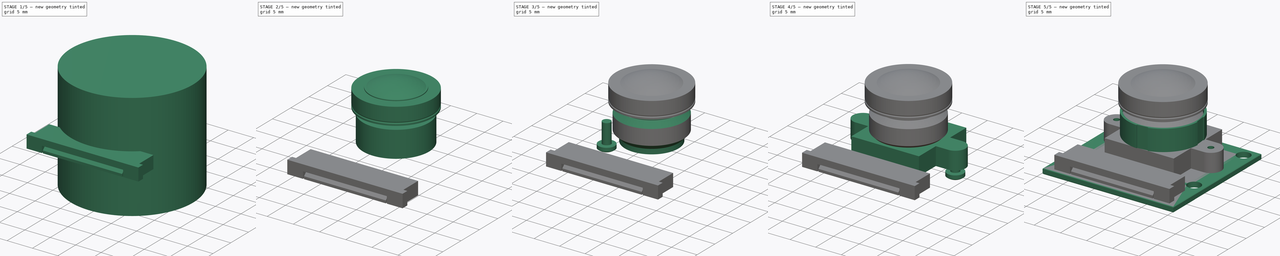
[diagram: build sequence overview — one tinted view per stage of 5, left to right]
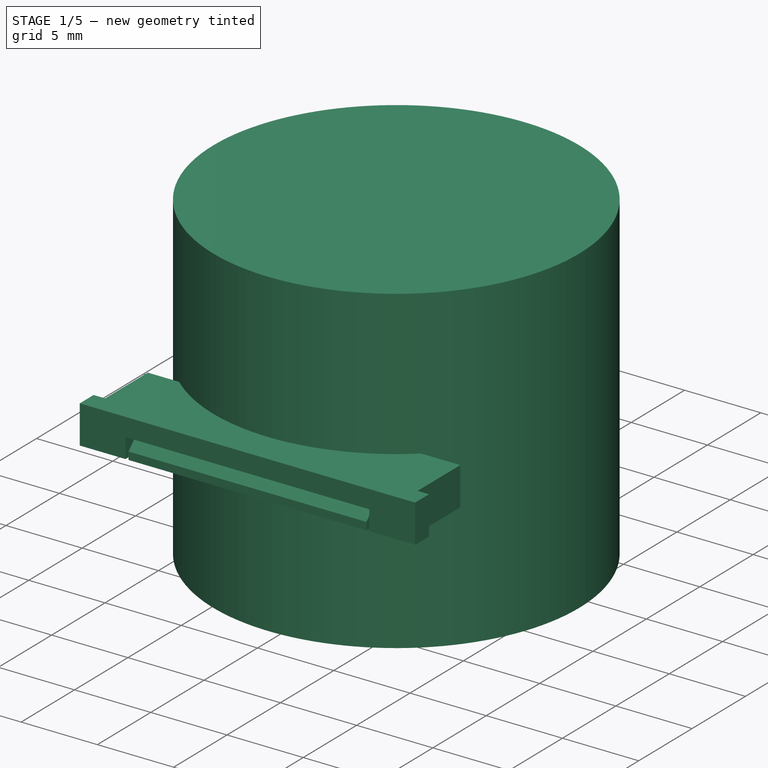
[diagram: stage 1 of 5 — iso view after this stage's code; geometry added in this stage tinted green]
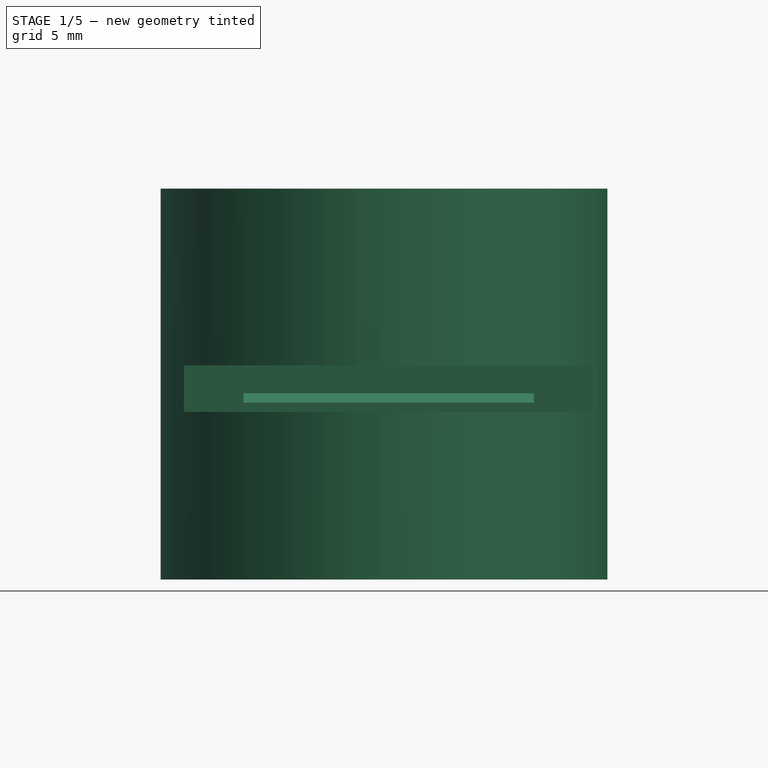
[diagram: stage 1 of 5 — front view after this stage's code; geometry added in this stage tinted green]
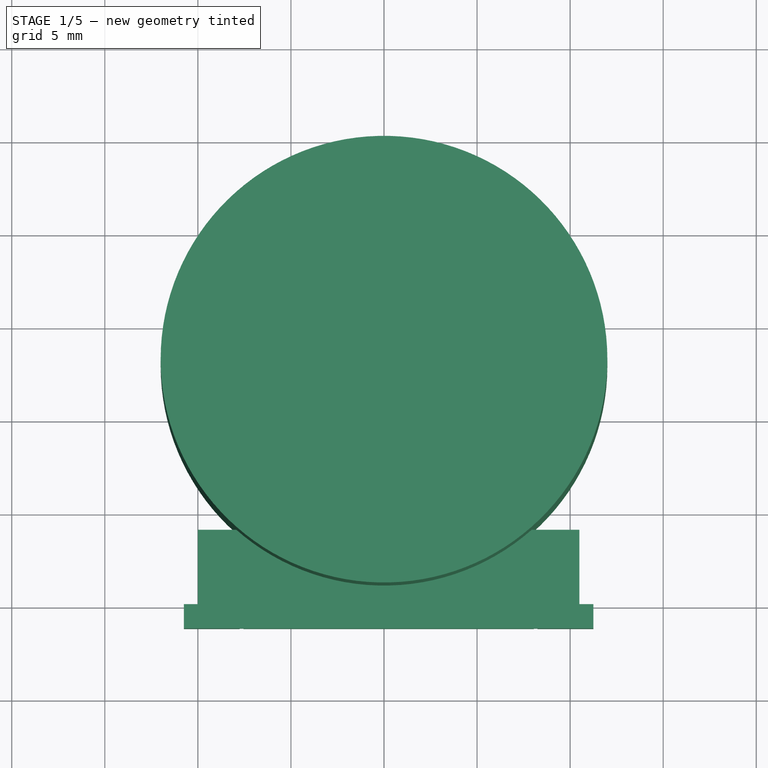
[diagram: stage 1 of 5 — top view after this stage's code; geometry added in this stage tinted green]
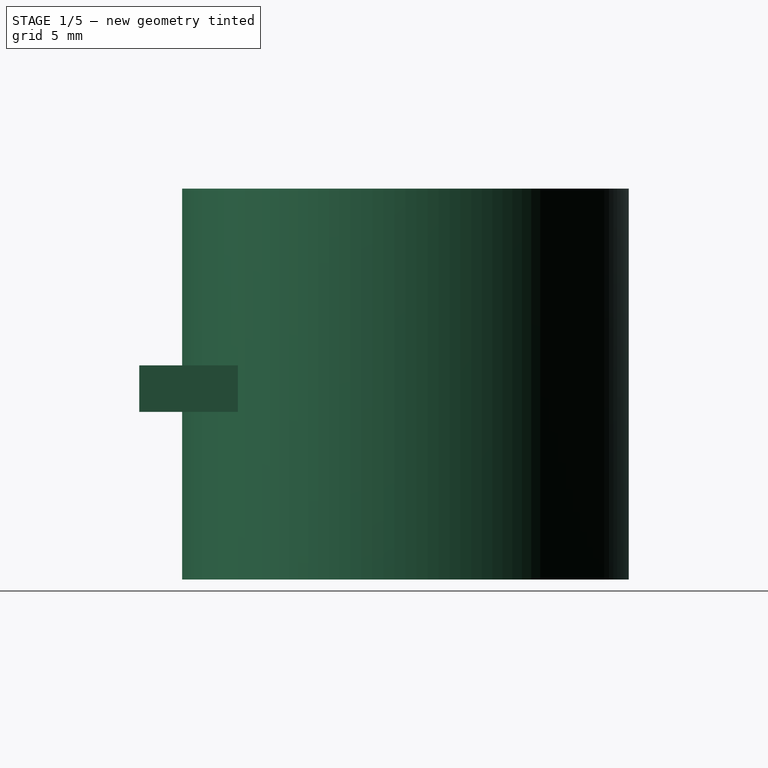
[diagram: stage 1 of 5 — right view after this stage's code; geometry added in this stage tinted green]
FCSTD DOCUMENT  (FreeCAD 0.17R12802 (Git))
Label: Wide-170-Angle-Raspi-Camera
License: All rights reserved
LicenseURL: http://en.wikipedia.org/wiki/All_rights_reserved
objects: Sketcher::SketchObject×13, PartDesign::Pad×7, PartDesign::Body×6, Part::Cylinder×6, PartDesign::ShapeBinder×5, PartDesign::Hole×5, Part::Cut×5, App::Part×4, Part::Box×4, Part::MultiFuse×3, Part::FeaturePython×2, Part::Chamfer×2, PartDesign::Chamfer×1, PartDesign::Pocket×1, Part::Torus×1, Part::Sphere×1
note: 75 computed .brp shape members not serialized (recipe doc carries the construction recipe); baked Part::Feature solids carry a one-line shape summary decoded from their .brp

FEATURE [Part::Cylinder] Cylinder005  label="Zylinder005"
  Angle = 360
  AttacherType = Attacher::AttachEngine3D
  Height = 21
  Placement = pos=(0,3,-9) rot=(0,0,1;0rad)
  Radius = 12
FEATURE [App::Part] Part002  label="Linsenkoerper"
  Group = -> [Cylinder001,Cut001,Torus,Chamfer001,Cut,Cylinder003,Cylinder002,Cylinder,Fusion001,Fusion,Cylinder004,Cut002,Sphere,Cylinder005,Cut003]
  License = CC BY 3.0
  LicenseURL = http://creativecommons.org/licenses/by/3.0/
  Origin = -> Origin008
FEATURE [Part::Box] Box  label="Würfel"
  AttacherType = Attacher::AttachEngine3D
  Height = 2.5
  Length = 20.5
  Placement = pos=(-10,-10,0) rot=(0,0,1;0rad)
  Width = 4
FEATURE [Part::Box] Box001  label="Würfel001"
  AttacherType = Attacher::AttachEngine3D
  Height = 2.5
  Length = 22
  Placement = pos=(-10.75,-11.3,0) rot=(0,0,1;0rad)
  Width = 1.3
FEATURE [Part::Box] Box002  label="Würfel002"
  AttacherType = Attacher::AttachEngine3D
  Height = 1.3
  Length = 16
  Placement = pos=(-7.75,-11.3,0) rot=(0,0,1;0rad)
  Width = 1.3
FEATURE [Part::Cut] Cut004
  Base = -> Box001
  Tool = -> Box002
FEATURE [Part::Box] Box003  label="Würfel003"
  AttacherType = Attacher::AttachEngine3D
  Height = 1
  Length = 15.6
  Placement = pos=(-7.55,-11.3,0) rot=(0,0,1;0rad)
  Width = 1.5
FEATURE [Part::MultiFuse] Fusion002
  Shapes = -> [Box,Box003]
FEATURE [Part::Chamfer] Chamfer002
  Base = -> Fusion002
  Edges = 1 edges r=0.5: [Edge24]
FEATURE [App::Part] Part003  label="Stecker"
  Group = -> [Box001,Box002,Cut004,Box003,Box,Fusion002,Chamfer002]
  License = CC BY 3.0
  LicenseURL = http://creativecommons.org/licenses/by/3.0/
  Origin = -> Origin009
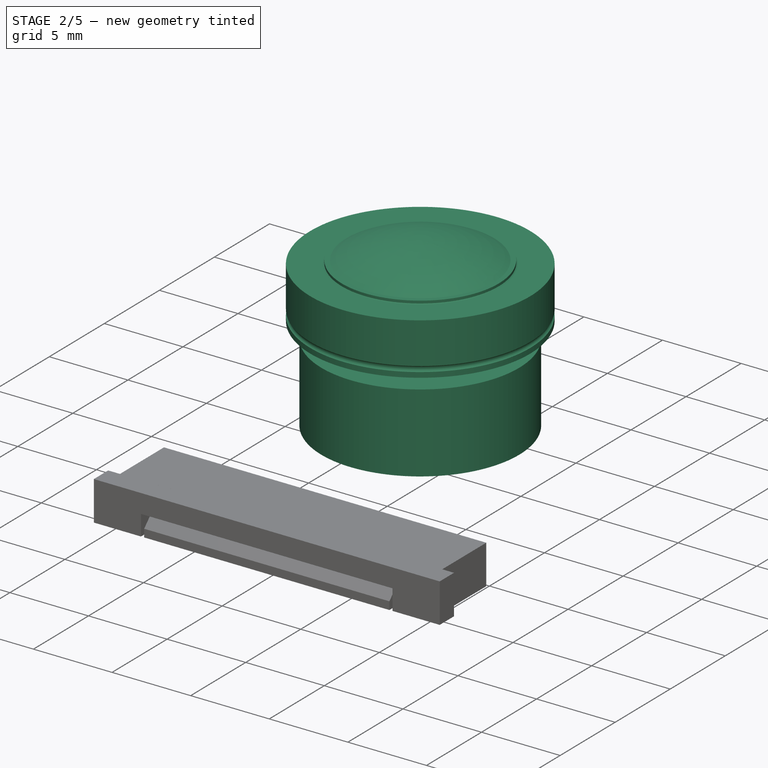
[diagram: stage 2 of 5 — iso view after this stage's code; geometry added in this stage tinted green]
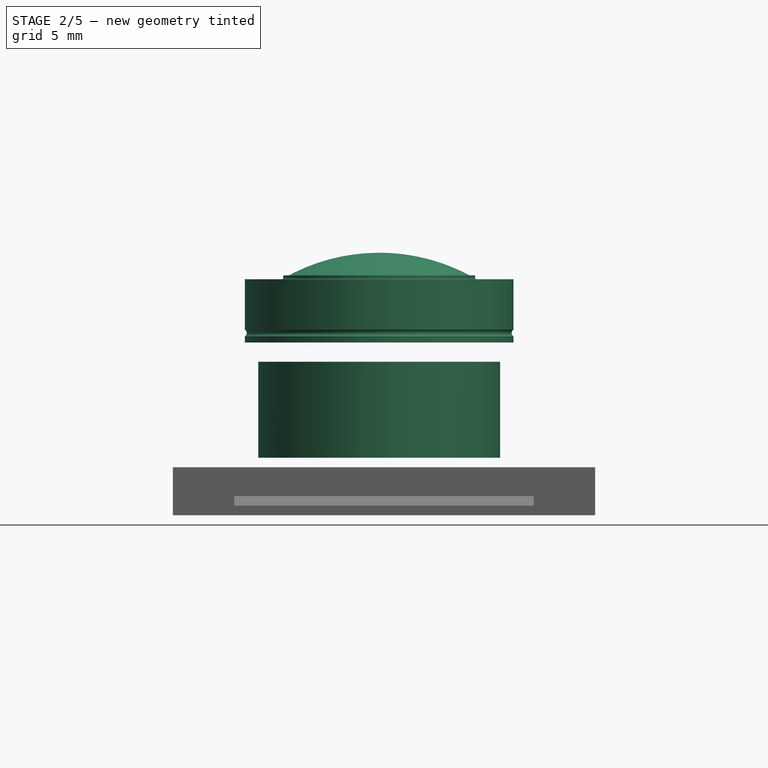
[diagram: stage 2 of 5 — front view after this stage's code; geometry added in this stage tinted green]
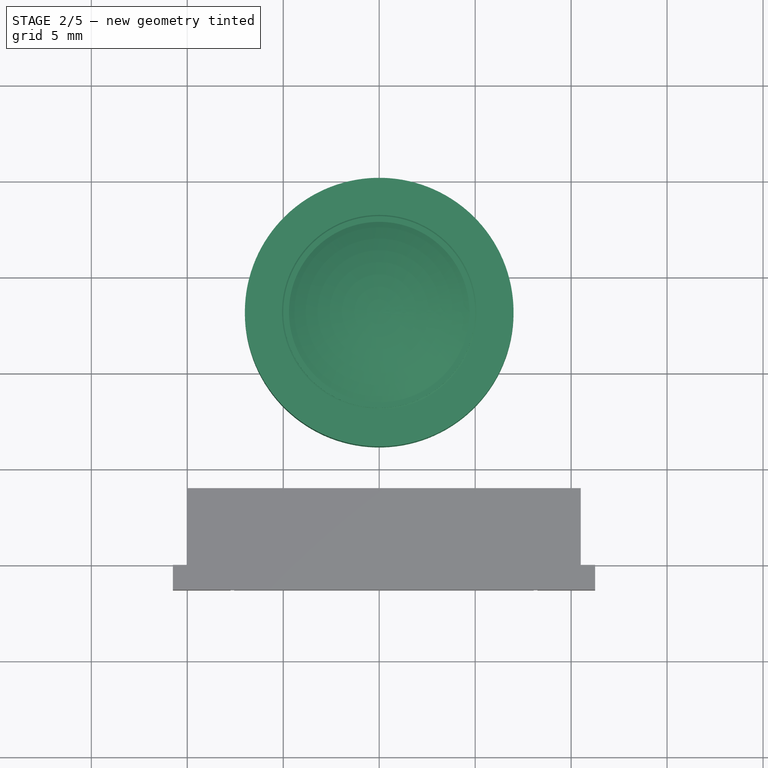
[diagram: stage 2 of 5 — top view after this stage's code; geometry added in this stage tinted green]
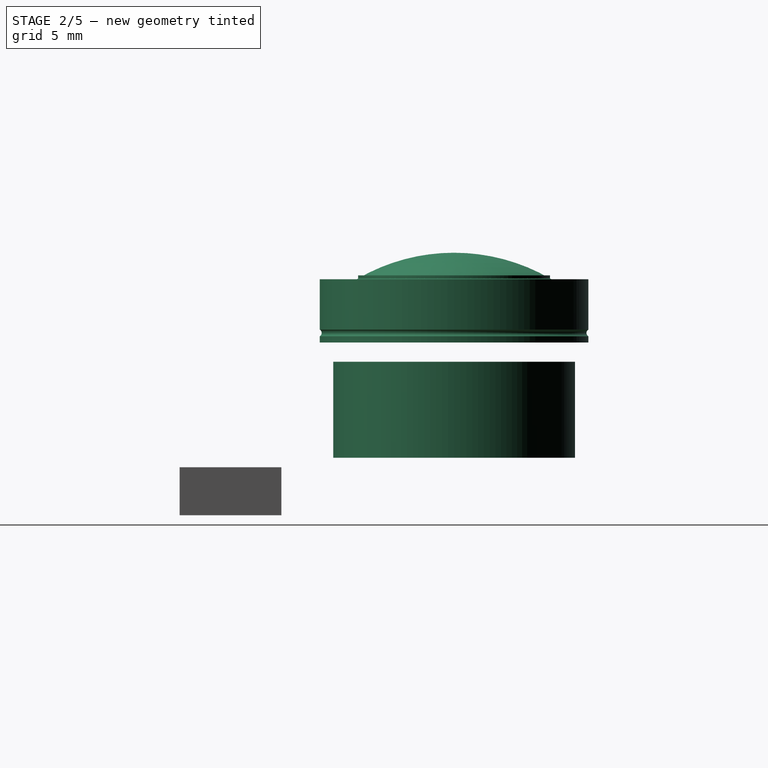
[diagram: stage 2 of 5 — right view after this stage's code; geometry added in this stage tinted green]
FEATURE [Part::Cylinder] Cylinder001  label="Zylinder001"
  Angle = 360
  AttacherType = Attacher::AttachEngine3D
  Height = 5
  Placement = pos=(0,3,3) rot=(0,0,1;0rad)
  Radius = 6.3
FEATURE [Part::Cylinder] Cylinder003  label="Zylinder003"
  Angle = 360
  AttacherType = Attacher::AttachEngine3D
  Height = 3.3
  Placement = pos=(0,3,9) rot=(0,0,1;0rad)
  Radius = 7
FEATURE [Part::Torus] Torus
  Angle1 = -180
  Angle2 = 180
  Angle3 = 360
  AttacherType = Attacher::AttachEngine3D
  Placement = pos=(0,3,9.5) rot=(0,0,1;0rad)
  Radius1 = 7.1
  Radius2 = 0.2
FEATURE [Part::Cut] Cut001
  Base = -> Cylinder003
  Tool = -> Torus
FEATURE [Part::Cylinder] Cylinder004  label="Zylinder004"
  Angle = 360
  AttacherType = Attacher::AttachEngine3D
  Height = 2
  Placement = pos=(0,3,10.5) rot=(0,0,1;0rad)
  Radius = 5
FEATURE [Part::Sphere] Sphere  label="Kugel"
  Angle1 = -90
  Angle2 = 90
  Angle3 = 360
  AttacherType = Attacher::AttachEngine3D
  Placement = pos=(0,3,3.68) rot=(0,0,1;0rad)
  Radius = 10
FEATURE [Part::Cut] Cut003
  Base = -> Sphere
  Tool = -> Cylinder005
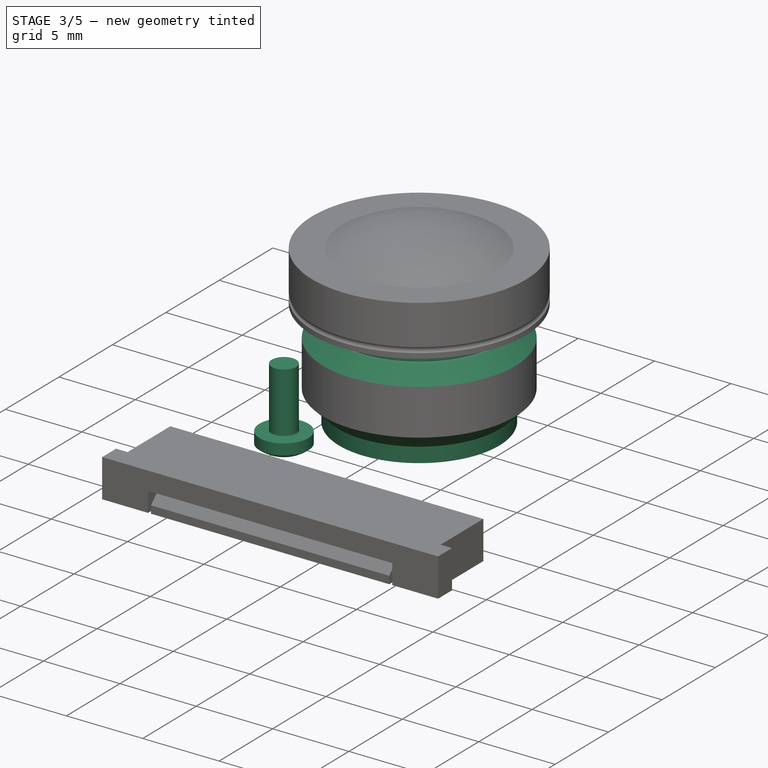
[diagram: stage 3 of 5 — iso view after this stage's code; geometry added in this stage tinted green]
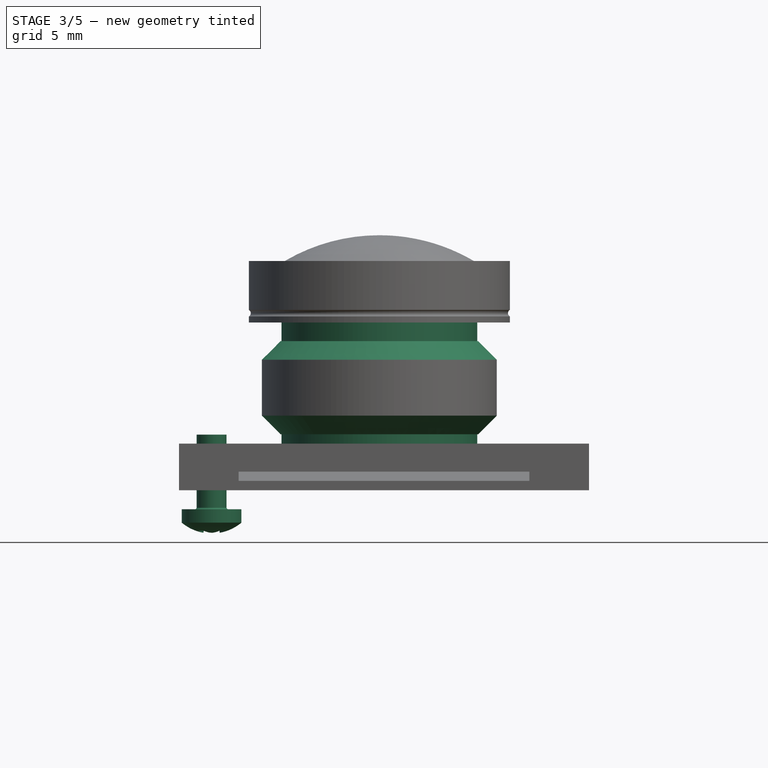
[diagram: stage 3 of 5 — front view after this stage's code; geometry added in this stage tinted green]
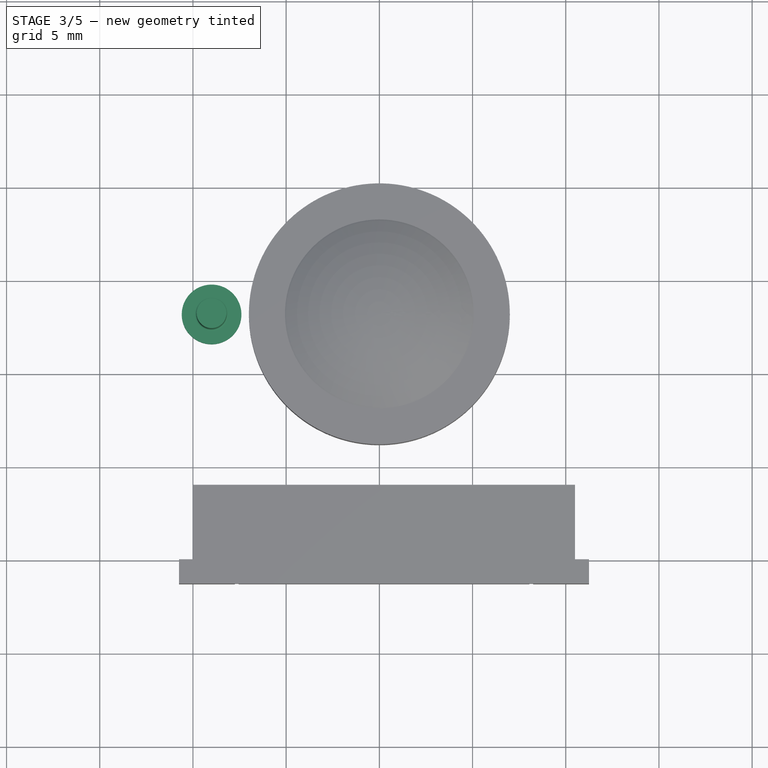
[diagram: stage 3 of 5 — top view after this stage's code; geometry added in this stage tinted green]
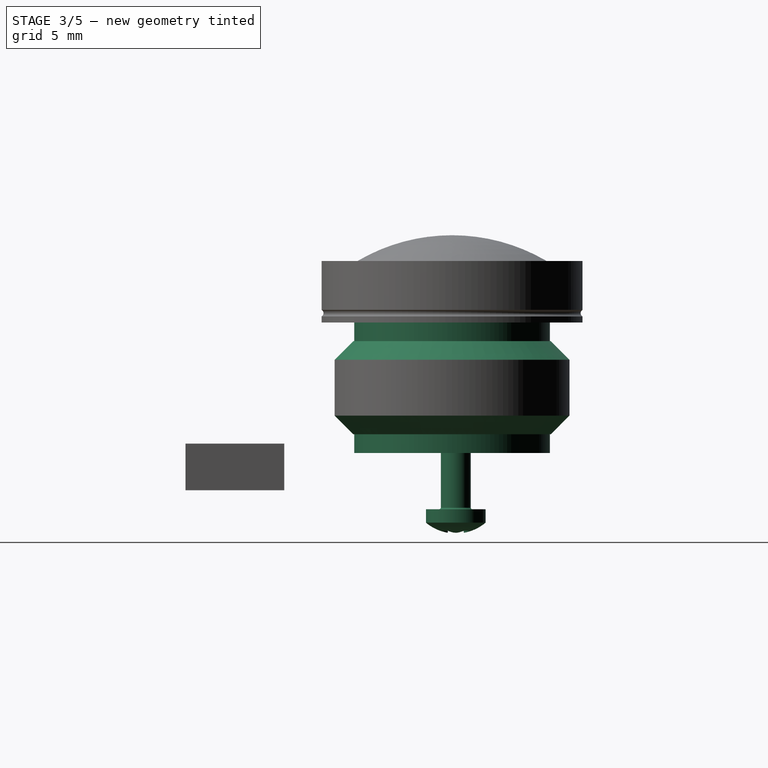
[diagram: stage 3 of 5 — right view after this stage's code; geometry added in this stage tinted green]
FEATURE [Part::FeaturePython] Screw001  label="M1.6x4-Screw"  # Fasteners workbench fastener (typed FeaturePython)
  Placement = pos=(-9,3.2,-1.02) rot=(0,1,0;3.14159rad)
  diameter = 1
  invert = false
  length = 1
  matchOuter = false
  offset = 0
  thread = false
  type = 16
FEATURE [App::Part] Part001  label="LinsenBasis"
  Group = -> [Body005,Screw,Screw001]
  License = CC BY 3.0
  LicenseURL = http://creativecommons.org/licenses/by/3.0/
  Origin = -> Origin006
FEATURE [Part::Cylinder] Cylinder  label="Zylinder"
  Angle = 360
  AttacherType = Attacher::AttachEngine3D
  Height = 7
  Placement = pos=(0,3,2) rot=(0,0,1;0rad)
  Radius = 5.25
FEATURE [Part::Chamfer] Chamfer001
  Base = -> Cylinder001
  Edges = 2 edges r=1: [Edge1,Edge3]
FEATURE [Part::Cylinder] Cylinder002  label="Zylinder002"
  Angle = 360
  AttacherType = Attacher::AttachEngine3D
  Height = 10
  Placement = pos=(0,3,1) rot=(0,0,1;0rad)
  Radius = 4.5
FEATURE [Part::MultiFuse] Fusion
  Shapes = -> [Chamfer001,Cylinder]
FEATURE [Part::Cut] Cut
  Base = -> Fusion
  Tool = -> Cylinder002
FEATURE [Part::MultiFuse] Fusion001
  Shapes = -> [Cut001,Cut]
FEATURE [Part::Cut] Cut002
  Base = -> Fusion001
  Tool = -> Cylinder004
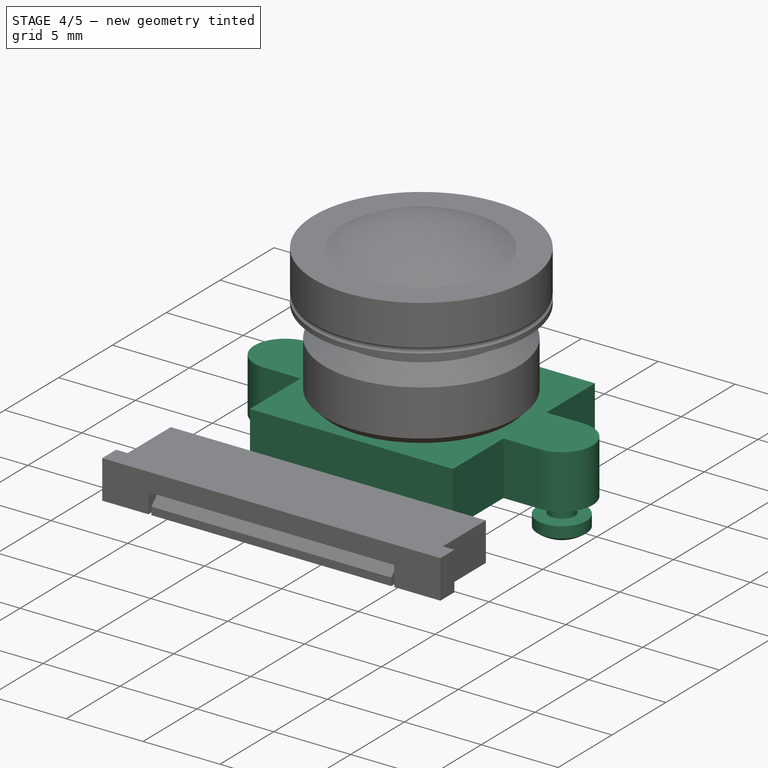
[diagram: stage 4 of 5 — iso view after this stage's code; geometry added in this stage tinted green]
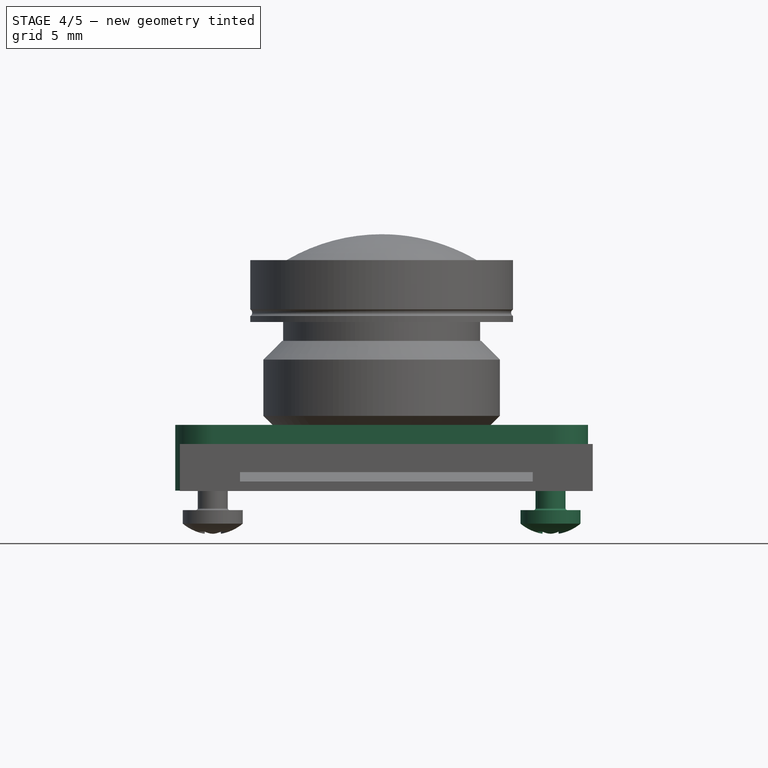
[diagram: stage 4 of 5 — front view after this stage's code; geometry added in this stage tinted green]
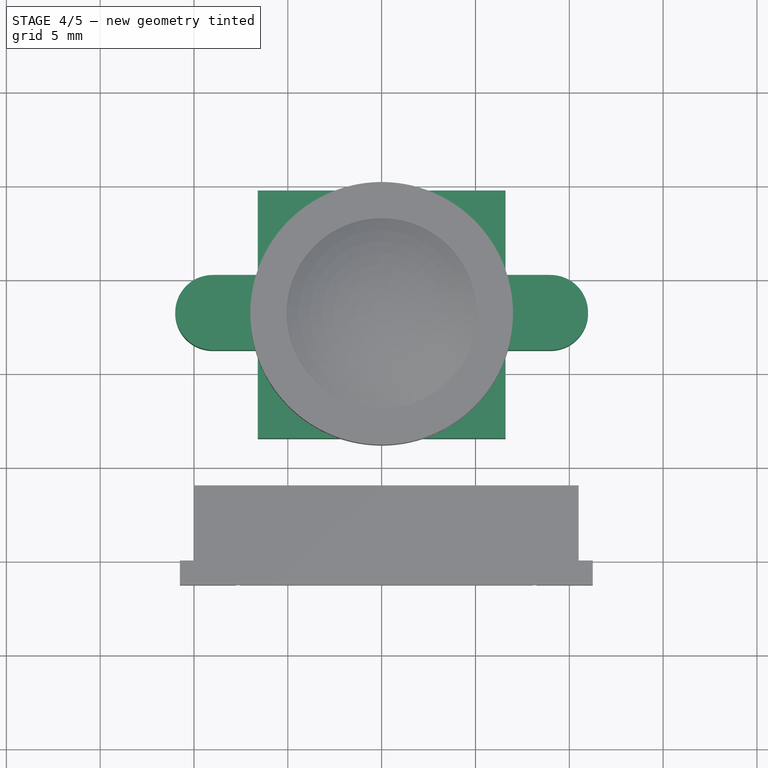
[diagram: stage 4 of 5 — top view after this stage's code; geometry added in this stage tinted green]
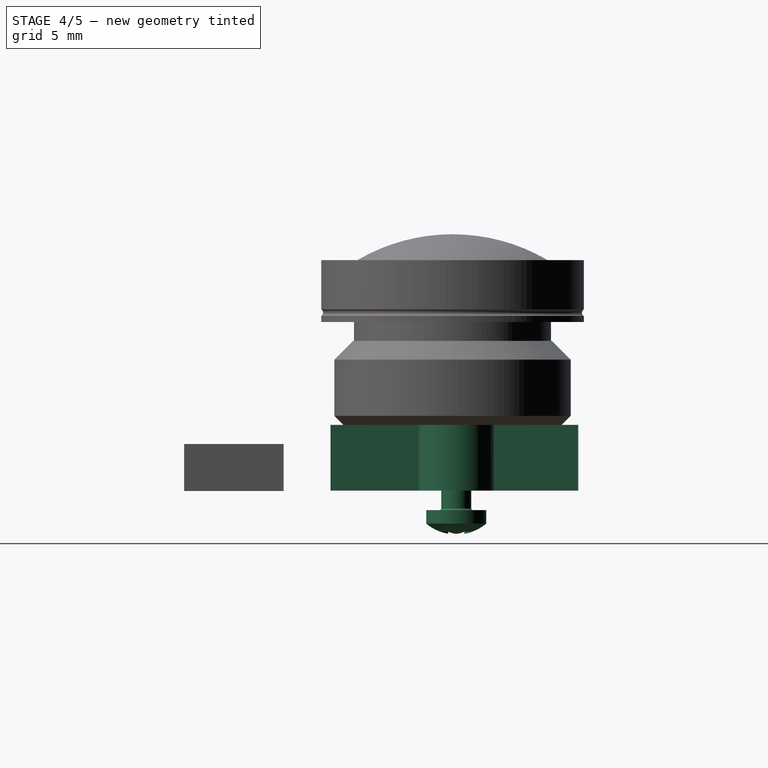
[diagram: stage 4 of 5 — right view after this stage's code; geometry added in this stage tinted green]
FEATURE [Sketcher::SketchObject] Sketch
  MapMode = 5
  Support = -> [XY_Plane001]
  sketch-geometry (4):
    g0: LineSegment StartX=-12.5 StartY=12 StartZ=0 EndX=12.5 EndY=12 EndZ=0
    g1: LineSegment StartX=12.5 StartY=12 StartZ=0 EndX=12.5 EndY=-12 EndZ=0
    g2: LineSegment StartX=12.5 StartY=-12 StartZ=0 EndX=-12.5 EndY=-12 EndZ=0
    g3: LineSegment StartX=-12.5 StartY=-12 StartZ=0 EndX=-12.5 EndY=12 EndZ=0
  constraints (12):
    c: Coincident(g0,g1)
    c: Coincident(g1,g2)
    c: Coincident(g2,g3)
    c: Coincident(g3,g0)
    c: Horizontal(g0)
    c: Horizontal(g2)
    c: Vertical(g1)
    c: Vertical(g3)
    c: DistanceY(g1,g1) = 24
    c: DistanceX(g2,g2) = 25
    c: Symmetric(g0,g0,g-2)
    c: Symmetric(g0,g2,g-1)
FEATURE [PartDesign::Pad] Pad
  Length = 1
  Length2 = 100
  Profile = -> Sketch
  Reversed = true
  Type = 0
FEATURE [PartDesign::Chamfer] Chamfer
  Base = -> Pad [Face5,Face6]
  BaseFeature = -> Pad
  Size = 0.1
FEATURE [PartDesign::ShapeBinder] ShapeBinder001
  Support = -> [Chamfer]
FEATURE [Sketcher::SketchObject] Sketch005
  ExternalGeometry = -> [ShapeBinder001]
  MapMode = 5
  Support = -> [ShapeBinder001]
  sketch-geometry (4):
    g0: LineSegment StartX=-12.4 StartY=11.9 StartZ=0 EndX=12.4 EndY=11.9 EndZ=0
    g1: LineSegment StartX=12.4 StartY=11.9 StartZ=0 EndX=12.4 EndY=-11.9 EndZ=0
    g2: LineSegment StartX=12.4 StartY=-11.9 StartZ=0 EndX=-12.4 EndY=-11.9 EndZ=0
    g3: LineSegment StartX=-12.4 StartY=-11.9 StartZ=0 EndX=-12.4 EndY=11.9 EndZ=0
  constraints (10):
    c: Coincident(g0,g1)
    c: Coincident(g1,g2)
    c: Coincident(g2,g3)
    c: Coincident(g3,g0)
    c: Horizontal(g0)
    c: Horizontal(g2)
    c: Vertical(g1)
    c: Vertical(g3)
    c: Coincident(g0,g-3)
    c: Coincident(g1,g-4)
FEATURE [PartDesign::Pad] Pad002
  Length = 0.01
  Length2 = 100
  Profile = -> Sketch005
  Type = 0
FEATURE [PartDesign::Body] Body001  label="Leitschicht_unten"
  Group = -> [ShapeBinder,Sketch004,Pad001,Sketch006,Hole001]
  Origin = -> Origin002
  Tip = -> Hole001
FEATURE [PartDesign::Hole] Hole002
  BaseFeature = -> Pad002
  Depth = 25
  DepthType = 0
  Diameter = 2.5
  DrillPoint = 1
  DrillPointAngle = 118
  HoleCutCountersinkAngle = 90
  HoleCutDepth = 0
  HoleCutDiameter = 0
  HoleCutType = 0
  ModelActualThread = false
  Profile = -> Sketch007
  Tapered = false
  TaperedAngle = 90
  ThreadAngle = 0
  ThreadClass = 0
  ThreadCutOffInner = 0
  ThreadCutOffOuter = 0
  ThreadDirection = 0
  ThreadFit = 0
  ThreadPitch = 0
  ThreadSize = 0
  ThreadType = 0
  Threaded = false
FEATURE [PartDesign::Body] Body002  label="Leitschicht_oben"
  Group = -> [ShapeBinder001,Sketch005,Pad002,Sketch007,Hole002]
  Origin = -> Origin003
  Tip = -> Hole002
FEATURE [PartDesign::ShapeBinder] ShapeBinder002
  Support = -> [Hole002]
FEATURE [PartDesign::ShapeBinder] ShapeBinder003
  Support = -> [Hole001]
FEATURE [Sketcher::SketchObject] Sketch008
  ExternalGeometry = -> [ShapeBinder002]
  MapMode = 5
  Placement = pos=(0,0,0.01) rot=(0,0,1;0rad)
  Support = -> [ShapeBinder002]
  sketch-geometry (18):
    g0: LineSegment [constr] StartX=-12.4 StartY=11.9 StartZ=0 EndX=-10.5 EndY=10 EndZ=0
    g1: LineSegment [constr] StartX=12.4 StartY=11.9 StartZ=0 EndX=10.5 EndY=10 EndZ=0
    g2: LineSegment [constr] StartX=-10.5 StartY=-3.5 StartZ=0 EndX=-12.4 EndY=-3.5 EndZ=0
    g3: LineSegment [constr] StartX=10.5 StartY=-3.5 StartZ=0 EndX=12.4 EndY=-3.5 EndZ=0
    g4: ArcOfCircle CenterX=-11.3839 CenterY=10.8839 CenterZ=0 NormalX=0 NormalY=0 NormalZ=1 AngleXU=0 Radius=2.86979 StartAngle=4.35047 EndAngle=6.64511
    g5: ArcOfCircle CenterX=11.3839 CenterY=10.8839 CenterZ=0 NormalX=0 NormalY=0 NormalZ=1 AngleXU=0 Radius=2.86979 StartAngle=2.77967 EndAngle=5.07431
    g6: ArcOfCircle CenterX=-11.4 CenterY=-3.5 CenterZ=0 NormalX=0 NormalY=0 NormalZ=1 AngleXU=0 Radius=2.5 StartAngle=4.71239 EndAngle=7.85398
    g7: LineSegment StartX=-12.4 StartY=-6 StartZ=0 EndX=-11.4 EndY=-6 EndZ=0
    g8: LineSegment StartX=-12.4 StartY=-1 StartZ=0 EndX=-11.4 EndY=-1 EndZ=0
    g9: ArcOfCircle CenterX=11.4 CenterY=-3.5 CenterZ=0 NormalX=0 NormalY=0 NormalZ=1 AngleXU=0 Radius=2.5 StartAngle=1.5708 EndAngle=4.71239
    g10: LineSegment StartX=12.4 StartY=-1 StartZ=0 EndX=11.4 EndY=-1 EndZ=0
    g11: LineSegment StartX=12.4 StartY=-6 StartZ=0 EndX=11.4 EndY=-6 EndZ=0
    g12: LineSegment StartX=-8.7 StartY=11.9 StartZ=0 EndX=8.7 EndY=11.9 EndZ=0
    g13: LineSegment StartX=-12.4 StartY=8.2 StartZ=0 EndX=-12.4 EndY=-1 EndZ=0
    g14: LineSegment StartX=12.4 StartY=8.2 StartZ=0 EndX=12.4 EndY=-1 EndZ=0
    g15: LineSegment StartX=-12.4 StartY=-6 StartZ=0 EndX=-12.4 EndY=-11.9 EndZ=0
    g16: LineSegment StartX=-12.4 StartY=-11.9 StartZ=0 EndX=12.4 EndY=-11.9 EndZ=0
    g17: LineSegment StartX=12.4 StartY=-11.9 StartZ=0 EndX=12.4 EndY=-6 EndZ=0
  constraints (47):
    c: PointOnObject(g4,g-3)
    c: DistanceX(g-3,g4) = 3.7
    c: PointOnObject(g5,g-3)
    c: PointOnObject(g4,g-4)
    c: PointOnObject(g5,g-5)
    c: Coincident(g0,g-6)
    c: Coincident(g1,g-7)
    c: Coincident(g2,g-8)
    c: PointOnObject(g2,g-4)
    c: Horizontal(g2)
    c: PointOnObject(g3,g-5)
    c: Horizontal(g3)
    c: PointOnObject(g4,g-6)
    c: PointOnObject(g5,g-7)
    c: PointOnObject(g5,g1)
    c: PointOnObject(g4,g0)
    c: Coincident(g3,g-9)
    c: DistanceX(g5,g-3) = 3.7
    c: Tangent(g7,g6) = -1.5708
    c: Tangent(g8,g6) = 1.5708
    c: Tangent(g10,g9) = -1.5708
    c: Tangent(g11,g9) = 1.5708
    c: Horizontal(g10)
    c: PointOnObject(g8,g-4)
    c: PointOnObject(g7,g-4)
    c: PointOnObject(g10,g-5)
    c: PointOnObject(g11,g-5)
    c: DistanceY(g11,g10) = 5
    c: Horizontal(g8)
    c: Horizontal(g11)
    c: DistanceY(g7,g8) = 5
    c: PointOnObject(g6,g2)
    c: DistanceX(g6,g2) = 0.9
    c: PointOnObject(g9,g3)
    c: DistanceX(g3,g9) = 0.9
    c: Coincident(g12,g4)
    c: Coincident(g12,g5)
    c: Coincident(g13,g4)
    c: Coincident(g13,g8)
    c: Coincident(g14,g5)
    c: Coincident(g14,g10)
    c: Coincident(g15,g7)
    c: Coincident(g15,g-4)
    c: Coincident(g16,g15)
    c: Coincident(g16,g-5)
    c: Coincident(g17,g16)
    c: Coincident(g17,g11)
FEATURE [PartDesign::Pad] Pad003
  Length = 0.01
  Length2 = 100
  Profile = -> Sketch008
  Type = 0
FEATURE [PartDesign::Body] Body004  label="Beschichtung_u"
  Group = -> [ShapeBinder003,Sketch009,Pad004]
  Origin = -> Origin005
  Tip = -> Pad004
FEATURE [App::Part] Part  label="Platine"
  Group = -> [Body,Body001,Body002,Body003,Body004]
  License = CC BY 3.0
  LicenseURL = http://creativecommons.org/licenses/by/3.0/
  Origin = -> Origin
FEATURE [PartDesign::ShapeBinder] ShapeBinder004
  Support = -> [Pad003]
FEATURE [Sketcher::SketchObject] Sketch010
  ExternalGeometry = -> [ShapeBinder004]
  MapMode = 5
  Placement = pos=(0,0,0.02) rot=(0,0,1;0rad)
  Support = -> [ShapeBinder004]
  sketch-geometry (15):
    g0: LineSegment StartX=-6.6 StartY=9.7 StartZ=0 EndX=6.6 EndY=9.7 EndZ=0
    g1: LineSegment StartX=6.6 StartY=9.7 StartZ=0 EndX=6.6 EndY=5.2 EndZ=0
    g2: LineSegment StartX=6.6 StartY=5.2 StartZ=0 EndX=9 EndY=5.2 EndZ=0
    g3: LineSegment StartX=9 StartY=1.2 StartZ=0 EndX=6.6 EndY=1.2 EndZ=0
    g4: LineSegment StartX=6.6 StartY=1.2 StartZ=0 EndX=6.6 EndY=-3.5 EndZ=0
    g5: LineSegment StartX=6.6 StartY=-3.5 StartZ=0 EndX=-6.6 EndY=-3.5 EndZ=0
    g6: LineSegment StartX=-6.6 StartY=-3.5 StartZ=0 EndX=-6.6 EndY=1.2 EndZ=0
    g7: LineSegment StartX=-6.6 StartY=1.2 StartZ=0 EndX=-9 EndY=1.2 EndZ=0
    g8: LineSegment StartX=-9 StartY=5.2 StartZ=0 EndX=-6.6 EndY=5.2 EndZ=0
    g9: LineSegment StartX=-6.6 StartY=5.2 StartZ=0 EndX=-6.6 EndY=9.7 EndZ=0
    g10: LineSegment [constr] StartX=-9 StartY=5.2 StartZ=0 EndX=-9 EndY=1.2 EndZ=0
    g11: LineSegment [constr] StartX=9 StartY=5.2 StartZ=0 EndX=9 EndY=1.2 EndZ=0
    g12: ArcOfCircle CenterX=9 CenterY=3.2 CenterZ=0 NormalX=0 NormalY=0 NormalZ=1 AngleXU=0 Radius=2 StartAngle=4.71239 EndAngle=7.85398
    g13: ArcOfCircle CenterX=-9 CenterY=3.2 CenterZ=0 NormalX=0 NormalY=0 NormalZ=1 AngleXU=0 Radius=2 StartAngle=1.5708 EndAngle=4.71239
    g14: LineSegment [constr] StartX=-9 StartY=3.2 StartZ=0 EndX=9 EndY=3.2 EndZ=0
  constraints (44):
    c: Horizontal(g0)
    c: Vertical(g1)
    c: Coincident(g2,g1)
    c: Horizontal(g2)
    c: Horizontal(g3)
    c: Vertical(g4)
    c: Horizontal(g5)
    c: Vertical(g6)
    c: Horizontal(g7)
    c: Horizontal(g8)
    c: Coincident(g9,g0)
    c: Vertical(g9)
    c: Coincident(g10,g8)
    c: Coincident(g10,g7)
    c: Vertical(g10)
    c: Coincident(g11,g2)
    c: Coincident(g11,g3)
    c: Vertical(g11)
    c: PointOnObject(g12,g11)
    c: Coincident(g12,g2)
    c: Coincident(g12,g3)
    c: PointOnObject(g13,g10)
    c: Coincident(g13,g8)
    c: Coincident(g13,g7)
    c: DistanceX(g0,g0) = 13.2
    c: Symmetric(g0,g1,g-2)
    c: DistanceY(g5,g0) = 13.2
    c: DistanceY(g0,g-3) = 2.2
    c: Coincident(g14,g12)
    c: Horizontal(g14)
    c: Symmetric(g9,g7,g14)
    c: Coincident(g6,g7)
    c: Coincident(g5,g6)
    c: Coincident(g9,g8)
    c: Coincident(g1,g0)
    c: Coincident(g3,g4)
    c: Coincident(g4,g5)
    c: Equal(g13,g12)
    c: DistanceY(g6,g8) = 4
    c: Coincident(g14,g13)
    c: DistanceX(g13,g12) = 18
    c: Symmetric(g13,g12,g-2)
    c: DistanceX(g5,g5) = 13.2
    c: DistanceY(g9,g9) = 4.5
FEATURE [PartDesign::Pad] Pad005
  Length = 3.5
  Length2 = 100
  Profile = -> Sketch010
  Type = 0
FEATURE [PartDesign::Body] Body005  label="Body"
  Group = -> [ShapeBinder004,Sketch010,Pad005,Sketch011,Pad006,Sketch012,Pocket,Sketch013,Hole003,Sketch014,Hole004]
  Origin = -> Origin007
  Tip = -> Hole004
FEATURE [Part::FeaturePython] Screw  label="M1.6x4-Screw001"  # Fasteners workbench fastener (typed FeaturePython)
  Placement = pos=(9,3.2,-1.02) rot=(0,1,0;3.14159rad)
  diameter = 1
  invert = false
  length = 1
  matchOuter = false
  offset = 0
  thread = false
  type = 16
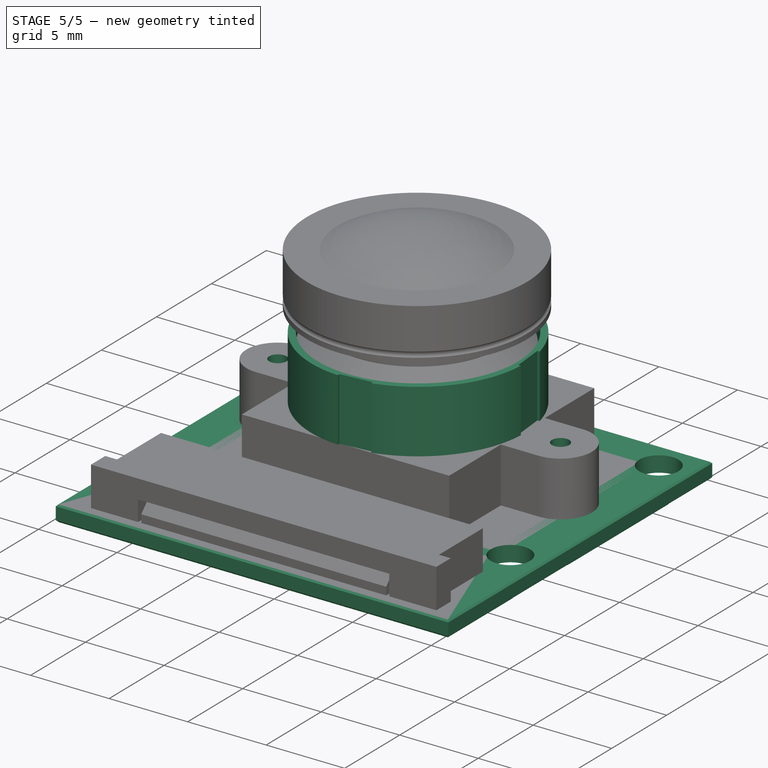
[diagram: stage 5 of 5 — iso view after this stage's code; geometry added in this stage tinted green]
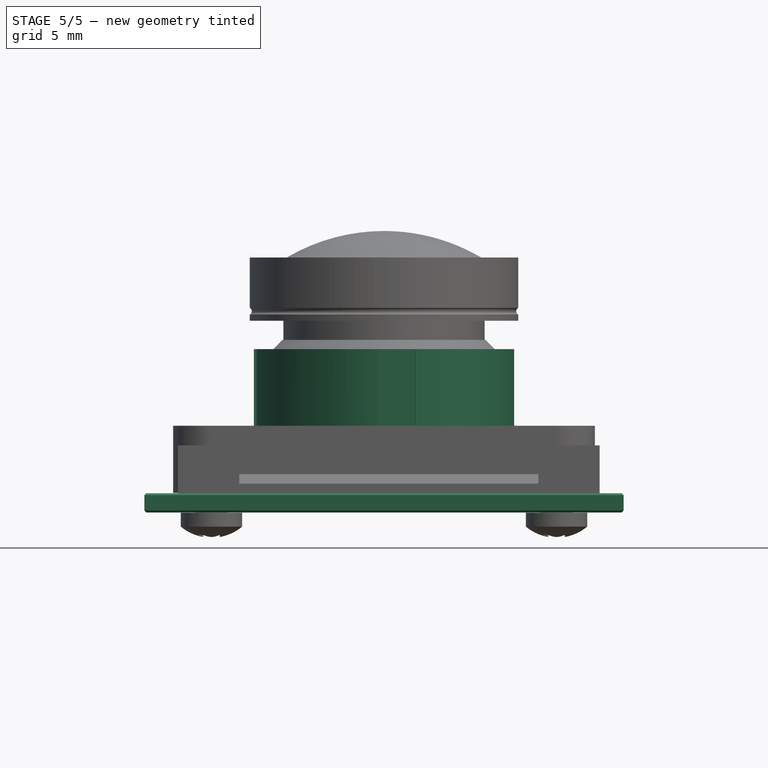
[diagram: stage 5 of 5 — front view after this stage's code; geometry added in this stage tinted green]
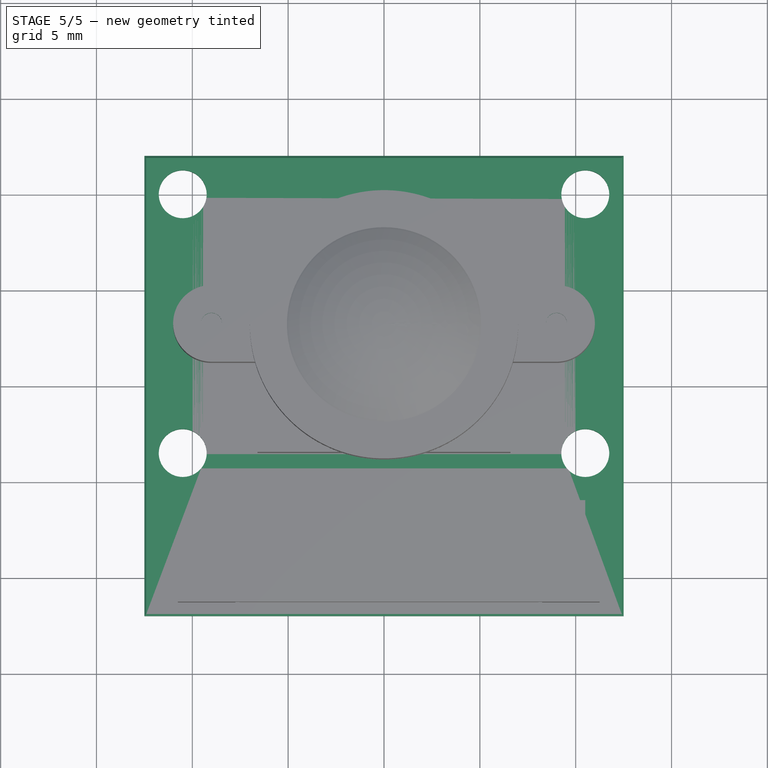
[diagram: stage 5 of 5 — top view after this stage's code; geometry added in this stage tinted green]
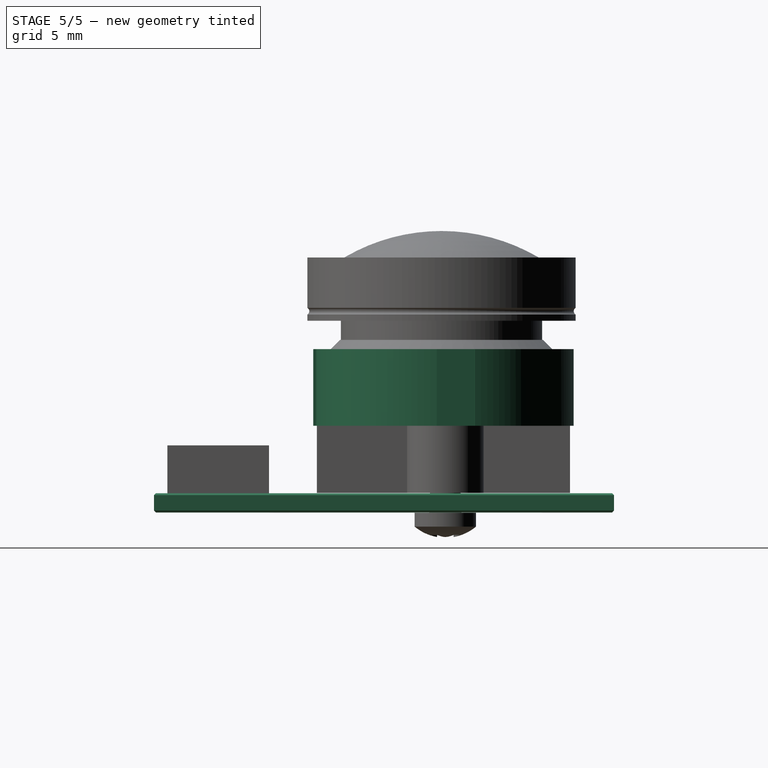
[diagram: stage 5 of 5 — right view after this stage's code; geometry added in this stage tinted green]
FEATURE [Sketcher::SketchObject] Sketch001
  ExternalGeometry = -> [Chamfer]
  MapMode = 5
  Support = -> [Chamfer]
  sketch-geometry (4):
    g0: Circle CenterX=-10.5 CenterY=10 CenterZ=0 NormalX=0 NormalY=0 NormalZ=1 AngleXU=0 Radius=1.25
    g1: Circle CenterX=10.5 CenterY=10 CenterZ=0 NormalX=0 NormalY=0 NormalZ=1 AngleXU=0 Radius=1.25
    g2: Circle CenterX=10.5 CenterY=-3.5 CenterZ=0 NormalX=0 NormalY=0 NormalZ=1 AngleXU=0 Radius=1.25
    g3: Circle CenterX=-10.5 CenterY=-3.5 CenterZ=0 NormalX=0 NormalY=0 NormalZ=1 AngleXU=0 Radius=1.25
  constraints (12):
    c: Radius(g0) = 1.25
    c: Equal(g0,g1)
    c: Equal(g1,g3)
    c: Equal(g3,g2)
    c: DistanceX(g2,g1) = 0
    c: DistanceY(g2,g1) = 13.5
    c: DistanceY(g3,g0) = 13.5
    c: DistanceX(g3,g0) = 0
    c: DistanceX(g-3,g0) = 2
    c: DistanceY(g0,g-3) = 2
    c: DistanceY(g1,g-3) = 2
    c: DistanceX(g1,g-3) = 2
FEATURE [PartDesign::ShapeBinder] ShapeBinder
  Support = -> [Chamfer]
FEATURE [Sketcher::SketchObject] Sketch004
  ExternalGeometry = -> [ShapeBinder]
  MapMode = 5
  Placement = pos=(0,0,-1) rot=(1,0,0;3.14159rad)
  Support = -> [ShapeBinder]
  sketch-geometry (4):
    g0: LineSegment StartX=-12.4 StartY=11.9 StartZ=0 EndX=12.4 EndY=11.9 EndZ=0
    g1: LineSegment StartX=12.4 StartY=11.9 StartZ=0 EndX=12.4 EndY=-11.9 EndZ=0
    g2: LineSegment StartX=12.4 StartY=-11.9 StartZ=0 EndX=-12.4 EndY=-11.9 EndZ=0
    g3: LineSegment StartX=-12.4 StartY=-11.9 StartZ=0 EndX=-12.4 EndY=11.9 EndZ=0
  constraints (10):
    c: Coincident(g0,g1)
    c: Coincident(g1,g2)
    c: Coincident(g2,g3)
    c: Coincident(g3,g0)
    c: Horizontal(g0)
    c: Horizontal(g2)
    c: Vertical(g1)
    c: Vertical(g3)
    c: Coincident(g0,g-3)
    c: Coincident(g1,g-4)
FEATURE [PartDesign::Pad] Pad001
  Length = 0.01
  Length2 = 100
  Profile = -> Sketch004
  Type = 0
FEATURE [PartDesign::Hole] Hole
  BaseFeature = -> Chamfer
  Depth = 25
  DepthType = 0
  Diameter = 2.5
  DrillPoint = 1
  DrillPointAngle = 118
  HoleCutCountersinkAngle = 90
  HoleCutDepth = 0
  HoleCutDiameter = 0
  HoleCutType = 0
  ModelActualThread = false
  Profile = -> Sketch001
  Tapered = false
  TaperedAngle = 90
  ThreadAngle = 0
  ThreadClass = 0
  ThreadCutOffInner = 0
  ThreadCutOffOuter = 0
  ThreadDirection = 0
  ThreadFit = 0
  ThreadPitch = 0
  ThreadSize = 0
  ThreadType = 0
  Threaded = false
FEATURE [PartDesign::Body] Body  label="Glasfaser"
  Group = -> [Sketch,Pad,Sketch001,Chamfer,Hole]
  Origin = -> Origin001
  Tip = -> Hole
FEATURE [Sketcher::SketchObject] Sketch006
  MapMode = 5
  Placement = pos=(0,0,-1.01) rot=(1,0,0;3.14159rad)
  Support = -> [Pad001]
  sketch-geometry (8):
    g0: LineSegment [constr] StartX=12.5 StartY=-12 StartZ=0 EndX=-12.5 EndY=-12 EndZ=0
    g1: LineSegment [constr] StartX=-12.5 StartY=-12 StartZ=0 EndX=-12.5 EndY=12 EndZ=0
    g2: LineSegment [constr] StartX=-12.5 StartY=12 StartZ=0 EndX=12.5 EndY=12 EndZ=0
    g3: LineSegment [constr] StartX=12.5 StartY=12 StartZ=0 EndX=12.5 EndY=-12 EndZ=0
    g4: Circle CenterX=10.5 CenterY=-10 CenterZ=0 NormalX=0 NormalY=0 NormalZ=1 AngleXU=0 Radius=1.25
    g5: Circle CenterX=-10.5 CenterY=-10 CenterZ=0 NormalX=0 NormalY=0 NormalZ=1 AngleXU=0 Radius=1.25
    g6: Circle CenterX=10.5 CenterY=3.5 CenterZ=0 NormalX=0 NormalY=0 NormalZ=1 AngleXU=0 Radius=1.25
    g7: Circle CenterX=-10.5 CenterY=3.5 CenterZ=0 NormalX=0 NormalY=0 NormalZ=1 AngleXU=0 Radius=1.25
  constraints (24):
    c: Coincident(g0,g1)
    c: Coincident(g1,g2)
    c: Coincident(g2,g3)
    c: Coincident(g3,g0)
    c: Horizontal(g0)
    c: Horizontal(g2)
    c: Vertical(g1)
    c: Vertical(g3)
    c: Symmetric(g0,g0,g-2)
    c: Symmetric(g0,g2,g-1)
    c: DistanceX(g0,g0) = 25
    c: DistanceY(g3,g3) = 24
    c: Equal(g4,g5)
    c: Equal(g5,g6)
    c: Equal(g6,g7)
    c: DistanceX(g4,g0) = 2
    c: DistanceY(g0,g4) = 2
    c: DistanceX(g0,g5) = 2
    c: DistanceY(g0,g5) = 2
    c: DistanceX(g6,g4) = 0
    c: DistanceY(g4,g6) = 13.5
    c: DistanceX(g5,g7) = 0
    c: DistanceY(g5,g7) = 13.5
    c: Radius(g4) = 1.25
FEATURE [Sketcher::SketchObject] Sketch007
  MapMode = 5
  Placement = pos=(0,0,0.01) rot=(0,0,1;0rad)
  Support = -> [Pad002]
  sketch-geometry (8):
    g0: LineSegment [constr] StartX=-12.5 StartY=12 StartZ=0 EndX=12.5 EndY=12 EndZ=0
    g1: LineSegment [constr] StartX=12.5 StartY=12 StartZ=0 EndX=12.5 EndY=-12 EndZ=0
    g2: LineSegment [constr] StartX=12.5 StartY=-12 StartZ=0 EndX=-12.5 EndY=-12 EndZ=0
    g3: LineSegment [constr] StartX=-12.5 StartY=-12 StartZ=0 EndX=-12.5 EndY=12 EndZ=0
    g4: Circle CenterX=-10.5 CenterY=10 CenterZ=0 NormalX=0 NormalY=0 NormalZ=1 AngleXU=0 Radius=1.25
    g5: Circle CenterX=10.5 CenterY=10 CenterZ=0 NormalX=0 NormalY=0 NormalZ=1 AngleXU=0 Radius=1.25
    g6: Circle CenterX=-10.5 CenterY=-3.5 CenterZ=0 NormalX=0 NormalY=0 NormalZ=1 AngleXU=0 Radius=1.25
    g7: Circle CenterX=10.5 CenterY=-3.5 CenterZ=0 NormalX=0 NormalY=0 NormalZ=1 AngleXU=0 Radius=1.25
  constraints (24):
    c: Coincident(g0,g1)
    c: Coincident(g1,g2)
    c: Coincident(g2,g3)
    c: Coincident(g3,g0)
    c: Horizontal(g0)
    c: Horizontal(g2)
    c: Vertical(g1)
    c: Vertical(g3)
    c: Symmetric(g0,g0,g-2)
    c: Symmetric(g2,g0,g-1)
    c: DistanceX(g0,g0) = 25
    c: DistanceY(g3,g3) = 24
    c: Radius(g4) = 1.25
    c: Equal(g4,g5)
    c: Equal(g5,g6)
    c: Equal(g6,g7)
    c: DistanceX(g0,g4) = 2
    c: DistanceY(g4,g0) = 2
    c: DistanceX(g5,g0) = 2
    c: DistanceY(g5,g0) = 2
    c: DistanceY(g6,g4) = 13.5
    c: DistanceY(g7,g5) = 13.5
    c: DistanceX(g6,g4) = 0
    c: DistanceX(g7,g5) = 0
FEATURE [PartDesign::Hole] Hole001
  BaseFeature = -> Pad001
  Depth = 25
  DepthType = 0
  Diameter = 2.5
  DrillPoint = 1
  DrillPointAngle = 118
  HoleCutCountersinkAngle = 90
  HoleCutDepth = 0
  HoleCutDiameter = 0
  HoleCutType = 0
  ModelActualThread = false
  Profile = -> Sketch006
  Tapered = false
  TaperedAngle = 90
  ThreadAngle = 0
  ThreadClass = 0
  ThreadCutOffInner = 0
  ThreadCutOffOuter = 0
  ThreadDirection = 0
  ThreadFit = 0
  ThreadPitch = 0
  ThreadSize = 0
  ThreadType = 0
  Threaded = false
FEATURE [PartDesign::Body] Body003  label="Beschichtung_o"
  Group = -> [ShapeBinder002,Sketch008,Pad003]
  Origin = -> Origin004
  Tip = -> Pad003
FEATURE [Sketcher::SketchObject] Sketch009
  ExternalGeometry = -> [ShapeBinder003]
  MapMode = 5
  Placement = pos=(0,0,-1.01) rot=(1,0,0;3.14159rad)
  Support = -> [ShapeBinder003]
  sketch-geometry (18):
    g0: LineSegment [constr] StartX=12.4 StartY=-11.9 StartZ=0 EndX=10.5 EndY=-10 EndZ=0
    g1: LineSegment [constr] StartX=-12.4 StartY=-11.9 StartZ=0 EndX=-10.5 EndY=-10 EndZ=0
    g2: LineSegment [constr] StartX=-10.5 StartY=3.5 StartZ=0 EndX=-12.4 EndY=3.5 EndZ=0
    g3: LineSegment [constr] StartX=10.5 StartY=3.5 StartZ=0 EndX=12.4 EndY=3.5 EndZ=0
    g4: ArcOfCircle CenterX=11.3839 CenterY=-10.8839 CenterZ=0 NormalX=0 NormalY=0 NormalZ=1 AngleXU=0 Radius=2.86979 StartAngle=1.20887 EndAngle=3.50352
    g5: ArcOfCircle CenterX=-11.3839 CenterY=-10.8839 CenterZ=0 NormalX=0 NormalY=0 NormalZ=1 AngleXU=0 Radius=2.86979 StartAngle=5.92126 EndAngle=8.2159
    g6: ArcOfCircle CenterX=11.4 CenterY=3.5 CenterZ=0 NormalX=0 NormalY=0 NormalZ=1 AngleXU=0 Radius=2.5 StartAngle=1.5708 EndAngle=4.71239
    g7: LineSegment StartX=12.4 StartY=6 StartZ=0 EndX=11.4 EndY=6 EndZ=0
    g8: LineSegment StartX=12.4 StartY=1 StartZ=0 EndX=11.4 EndY=1 EndZ=0
    g9: ArcOfCircle CenterX=-11.4 CenterY=3.5 CenterZ=0 NormalX=0 NormalY=0 NormalZ=1 AngleXU=0 Radius=2.5 StartAngle=4.71239 EndAngle=7.85398
    g10: LineSegment StartX=-11.4 StartY=6 StartZ=0 EndX=-12.4 EndY=6 EndZ=0
    g11: LineSegment StartX=-11.4 StartY=1 StartZ=0 EndX=-12.4 EndY=1 EndZ=0
    g12: LineSegment StartX=12.4 StartY=-8.2 StartZ=0 EndX=12.4 EndY=1 EndZ=0
    g13: LineSegment StartX=12.4 StartY=6 StartZ=0 EndX=12.4 EndY=11.9 EndZ=0
    g14: LineSegment StartX=12.4 StartY=11.9 StartZ=0 EndX=-12.4 EndY=11.9 EndZ=0
    g15: LineSegment StartX=-12.4 StartY=11.9 StartZ=0 EndX=-12.4 EndY=6 EndZ=0
    g16: LineSegment StartX=-12.4 StartY=1 StartZ=0 EndX=-12.4 EndY=-8.2 EndZ=0
    g17: LineSegment StartX=-8.7 StartY=-11.9 StartZ=0 EndX=8.7 EndY=-11.9 EndZ=0
  constraints (50):
    c: Coincident(g0,g-4)
    c: Coincident(g0,g-6)
    c: Coincident(g1,g-5)
    c: Coincident(g1,g-7)
    c: Coincident(g2,g-9)
    c: PointOnObject(g2,g-5)
    c: Horizontal(g2)
    c: Coincident(g3,g-8)
    c: PointOnObject(g3,g-4)
    c: Horizontal(g3)
    c: PointOnObject(g4,g-6)
    c: PointOnObject(g4,g-3)
    c: PointOnObject(g4,g-4)
    c: PointOnObject(g5,g-7)
    c: PointOnObject(g5,g-3)
    c: PointOnObject(g5,g-5)
    c: PointOnObject(g4,g0)
    c: PointOnObject(g5,g1)
    c: DistanceX(g4,g0) = 3.7
    c: DistanceX(g1,g5) = 3.7
    c: Tangent(g7,g6) = -1.5708
    c: Tangent(g8,g6) = 1.5708
    c: Horizontal(g7)
    c: Tangent(g9,g11) = 1.5708
    c: Tangent(g9,g10) = -1.5708
    c: Horizontal(g10)
    c: PointOnObject(g8,g-4)
    c: PointOnObject(g7,g-4)
    c: DistanceY(g8,g7) = 5
    c: Horizontal(g8)
    c: PointOnObject(g6,g3)
    c: DistanceX(g3,g6) = 0.9
    c: PointOnObject(g11,g-5)
    c: PointOnObject(g10,g-5)
    c: DistanceY(g11,g10) = 5
    c: Horizontal(g11)
    c: PointOnObject(g9,g2)
    c: DistanceX(g9,g2) = 0.9
    c: Coincident(g12,g4)
    c: Coincident(g12,g8)
    c: Coincident(g13,g7)
    c: Coincident(g13,g-4)
    c: Coincident(g14,g13)
    c: Coincident(g14,g-5)
    c: Coincident(g15,g10)
    c: Vertical(g15)
    c: Coincident(g16,g11)
    c: Coincident(g16,g5)
    c: Coincident(g17,g5)
    c: Coincident(g17,g4)
FEATURE [PartDesign::Pad] Pad004
  Length = 0.01
  Length2 = 100
  Profile = -> Sketch009
  Type = 0
FEATURE [Sketcher::SketchObject] Sketch011
  ExternalGeometry = -> [Pad005]
  MapMode = 5
  Placement = pos=(0,0,3.52) rot=(0,0,1;0rad)
  Support = -> [Pad005]
  sketch-geometry (3):
    g0: LineSegment [constr] StartX=-6.6 StartY=9.7 StartZ=0 EndX=6.6 EndY=-3.5 EndZ=0
    g1: LineSegment [constr] StartX=-6.6 StartY=-3.5 StartZ=0 EndX=6.6 EndY=9.7 EndZ=0
    g2: Circle CenterX=0 CenterY=3.1 CenterZ=0 NormalX=0 NormalY=0 NormalZ=1 AngleXU=0 Radius=6.8
  constraints (7):
    c: Coincident(g0,g-4)
    c: Coincident(g0,g-6)
    c: Coincident(g1,g-6)
    c: Coincident(g1,g-4)
    c: PointOnObject(g2,g0)
    c: PointOnObject(g2,g1)
    c: Radius(g2) = 6.8
FEATURE [PartDesign::Pad] Pad006
  BaseFeature = -> Pad005
  Length = 4
  Length2 = 100
  Profile = -> Sketch011
  Type = 0
FEATURE [Sketcher::SketchObject] Sketch012
  ExternalGeometry = -> [Pad006]
  MapMode = 5
  Placement = pos=(0,0,3.52) rot=(0,0,1;0rad)
  Support = -> [Pad006]
  sketch-geometry (24):
    g0: LineSegment StartX=1.64715 StartY=-3.57285 StartZ=0 EndX=1.62568 EndY=-3.34995 EndZ=0
    g1: LineSegment StartX=1.62568 StartY=-3.34995 StartZ=0 EndX=-0.365108 EndY=-3.54164 EndZ=0
    g2: LineSegment StartX=-0.365108 StartY=-3.54164 StartZ=0 EndX=-0.343645 EndY=-3.76454 EndZ=0
    g3: LineSegment StartX=-0.343645 StartY=-3.76454 StartZ=0 EndX=1.64715 EndY=-3.57285 EndZ=0
    g4: LineSegment StartX=-1.62568 StartY=9.54995 StartZ=0 EndX=-1.64715 EndY=9.77285 EndZ=0
    g5: LineSegment StartX=-1.64715 StartY=9.77285 StartZ=0 EndX=0.343645 EndY=9.96454 EndZ=0
    g6: LineSegment StartX=0.343645 StartY=9.96454 StartZ=0 EndX=0.365108 EndY=9.74164 EndZ=0
    g7: LineSegment StartX=0.365108 StartY=9.74164 StartZ=0 EndX=-1.62568 EndY=9.54995 EndZ=0
    g8: LineSegment StartX=-6.64164 StartY=3.46511 StartZ=0 EndX=-6.44995 EndY=1.47432 EndZ=0
    g9: LineSegment StartX=-6.44995 StartY=1.47432 StartZ=0 EndX=-6.67285 EndY=1.45285 EndZ=0
    g10: LineSegment StartX=-6.67285 StartY=1.45285 StartZ=0 EndX=-6.86454 EndY=3.44365 EndZ=0
    g11: LineSegment StartX=-6.86454 StartY=3.44365 StartZ=0 EndX=-6.64164 EndY=3.46511 EndZ=0
    g12: LineSegment StartX=6.44995 StartY=4.72568 StartZ=0 EndX=6.64164 EndY=2.73489 EndZ=0
    g13: LineSegment StartX=6.64164 StartY=2.73489 StartZ=0 EndX=6.86454 EndY=2.75635 EndZ=0
    g14: LineSegment StartX=6.86454 StartY=2.75635 StartZ=0 EndX=6.67285 EndY=4.74715 EndZ=0
    g15: LineSegment StartX=6.67285 StartY=4.74715 StartZ=0 EndX=6.44995 EndY=4.72568 EndZ=0
    g16: GeomPoint X=6.59926 Y=4.74006 Z=0
    g17: GeomPoint X=-1.64006 Y=9.69926 Z=0
    g18: GeomPoint X=-6.59926 Y=1.45994 Z=0
    g19: GeomPoint X=1.64006 Y=-3.49926 Z=0
    g20: GeomPoint X=-0.350731 Y=-3.69095 Z=0
    g21: GeomPoint X=6.79095 Y=2.74927 Z=0
    g22: GeomPoint X=0.350731 Y=9.89095 Z=0
    g23: GeomPoint X=-6.79095 Y=3.45073 Z=0
  constraints (64):
    c: Coincident(g2,g1)
    c: Coincident(g3,g2)
    c: Coincident(g3,g0)
    c: Coincident(g0,g1)
    c: Distance(g1,g0) = 2
    c: Perpendicular(g2,g1)
    c: Perpendicular(g0,g1)
    c: Perpendicular(g3,g2)
    c: Angle(g-2,g2) = 0.0959931
    c: Coincident(g5,g4)
    c: Coincident(g6,g5)
    c: Coincident(g7,g6)
    c: Coincident(g7,g4)
    c: Coincident(g9,g8)
    c: Coincident(g10,g9)
    c: Coincident(g11,g10)
    c: Coincident(g11,g8)
    c: Coincident(g13,g12)
    c: Coincident(g14,g13)
    c: Coincident(g15,g14)
    c: Coincident(g15,g12)
    c: Perpendicular(g4,g7)
    c: Perpendicular(g7,g6)
    c: Perpendicular(g5,g4)
    c: Perpendicular(g8,g11)
    c: Perpendicular(g9,g8)
    c: Perpendicular(g10,g9)
    c: Perpendicular(g12,g15)
    c: Perpendicular(g13,g12)
    c: Perpendicular(g14,g13)
    c: Parallel(g4,g2)
    c: Parallel(g9,g3)
    c: Parallel(g1,g13)
    c: Distance(g7) = 2
    c: Distance(g12) = 2
    c: Distance(g8) = 2
    c: PointOnObject(g16,g-3)
    c: PointOnObject(g16,g15)
    c: Distance(g12,g16) = 0.15
    c: PointOnObject(g17,g-3)
    c: PointOnObject(g17,g4)
    c: Distance(g17,g4) = 0.15
    c: PointOnObject(g18,g-3)
    c: PointOnObject(g18,g9)
    c: Distance(g18,g8) = 0.15
    c: PointOnObject(g19,g-3)
    c: PointOnObject(g19,g0)
    c: Distance(g19,g0) = 0.15
    c: PointOnObject(g20,g-3)
    c: PointOnObject(g20,g2)
    c: Distance(g20,g1) = 0.15
    c: PointOnObject(g21,g-3)
    c: PointOnObject(g21,g13)
    c: Distance(g12,g21) = 0.15
    c: PointOnObject(g22,g-3)
    c: PointOnObject(g22,g6)
    c: Distance(g22,g6) = 0.15
    c: PointOnObject(g23,g-3)
    c: PointOnObject(g23,g11)
    c: Distance(g23,g8) = 0.15
    c: Tangent(g14,g-3)
    c: Tangent(g3,g-3)
    c: Tangent(g10,g-3)
    c: Tangent(g5,g-3)
FEATURE [PartDesign::Pocket] Pocket
  BaseFeature = -> Pad006
  Length = 5
  Profile = -> Sketch012
  Reversed = true
  Type = 0
FEATURE [Sketcher::SketchObject] Sketch013
  ExternalGeometry = -> [Pocket]
  MapMode = 5
  Placement = pos=(0,0,7.52) rot=(0,0,1;0rad)
  Support = -> [Pocket]
  sketch-geometry (1):
    g0: Circle CenterX=0 CenterY=3.1 CenterZ=0 NormalX=0 NormalY=0 NormalZ=1 AngleXU=0 Radius=5.96897
  constraints (1):
    c: Coincident(g0,g-3)
FEATURE [PartDesign::Hole] Hole003
  BaseFeature = -> Pocket
  Depth = 25
  DepthType = 0
  Diameter = 12.75
  DrillPoint = 1
  DrillPointAngle = 118
  HoleCutCountersinkAngle = 90
  HoleCutDepth = 0
  HoleCutDiameter = 14
  HoleCutType = 0
  ModelActualThread = false
  Profile = -> Sketch013
  Tapered = false
  TaperedAngle = 90
  ThreadAngle = 60
  ThreadClass = 0
  ThreadCutOffInner = 0.135316
  ThreadCutOffOuter = 0.270633
  ThreadDirection = 1
  ThreadFit = 0
  ThreadPitch = 1.25
  ThreadSize = 30
  ThreadType = 2
  Threaded = true
FEATURE [Sketcher::SketchObject] Sketch014
  ExternalGeometry = -> [Hole003]
  MapMode = 5
  Placement = pos=(0,0,3.52) rot=(0,0,1;0rad)
  Support = -> [Hole003]
  sketch-geometry (2):
    g0: Circle CenterX=-9 CenterY=3.2 CenterZ=0 NormalX=0 NormalY=0 NormalZ=1 AngleXU=0 Radius=0.25
    g1: Circle CenterX=9 CenterY=3.2 CenterZ=0 NormalX=0 NormalY=0 NormalZ=1 AngleXU=0 Radius=0.25
  constraints (4):
    c: Coincident(g0,g-3)
    c: Coincident(g1,g-4)
    c: Equal(g0,g1)
    c: Radius(g0) = 0.25
FEATURE [PartDesign::Hole] Hole004
  BaseFeature = -> Hole003
  Depth = 26
  DepthType = 0
  Diameter = 1.1
  DrillPoint = 1
  DrillPointAngle = 118
  HoleCutCountersinkAngle = 90
  HoleCutDepth = 0
  HoleCutDiameter = 1
  HoleCutType = 0
  ModelActualThread = false
  Profile = -> Sketch014
  Tapered = false
  TaperedAngle = 90
  ThreadAngle = 0
  ThreadClass = 0
  ThreadCutOffInner = 0
  ThreadCutOffOuter = 0
  ThreadDirection = 0
  ThreadFit = 0
  ThreadPitch = 0
  ThreadSize = 0
  ThreadType = 2
  Threaded = false
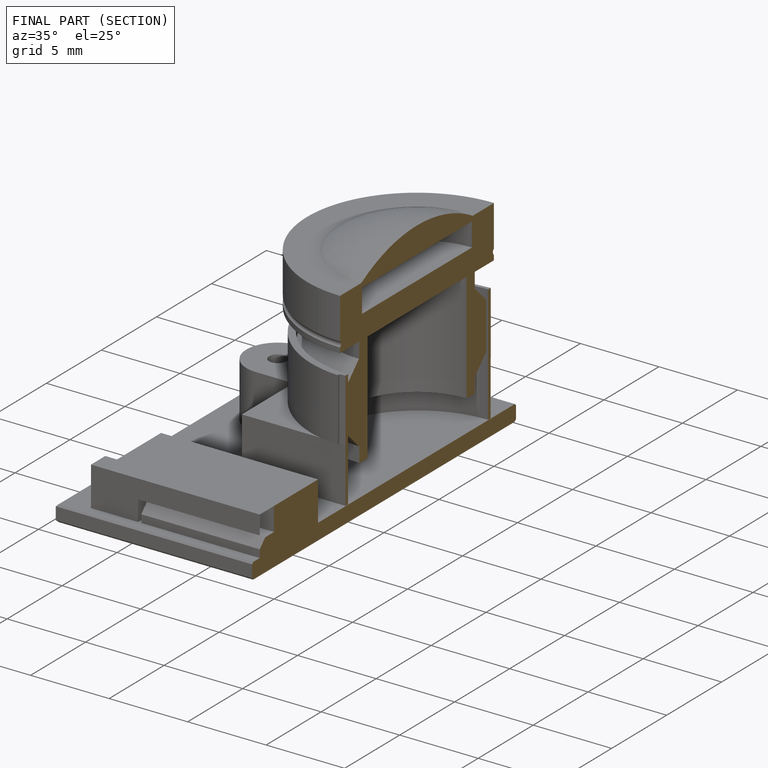
[diagram: finished part — half-section view (interior)]
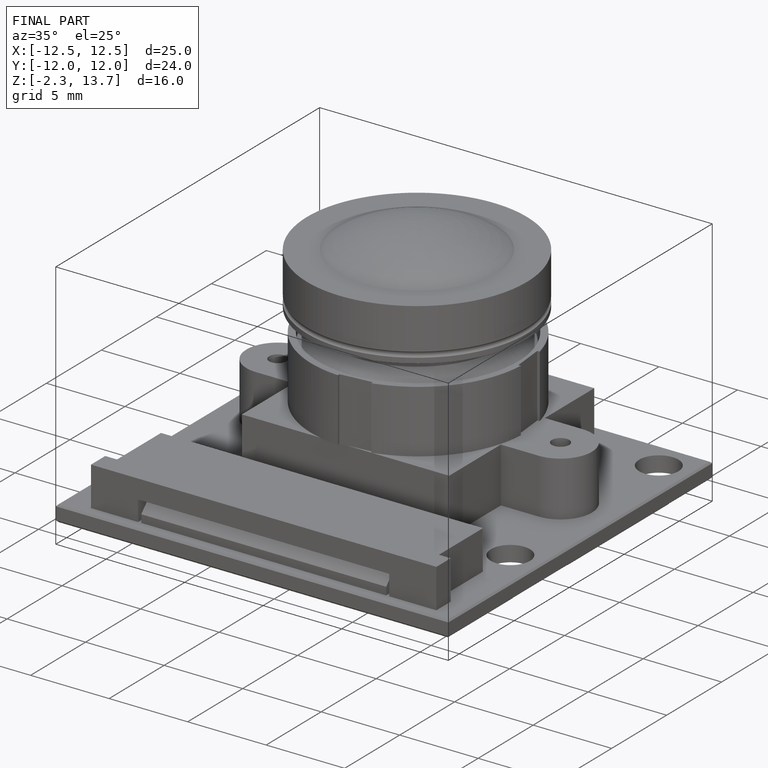
[diagram: finished part — iso view with bounding-box wireframe]
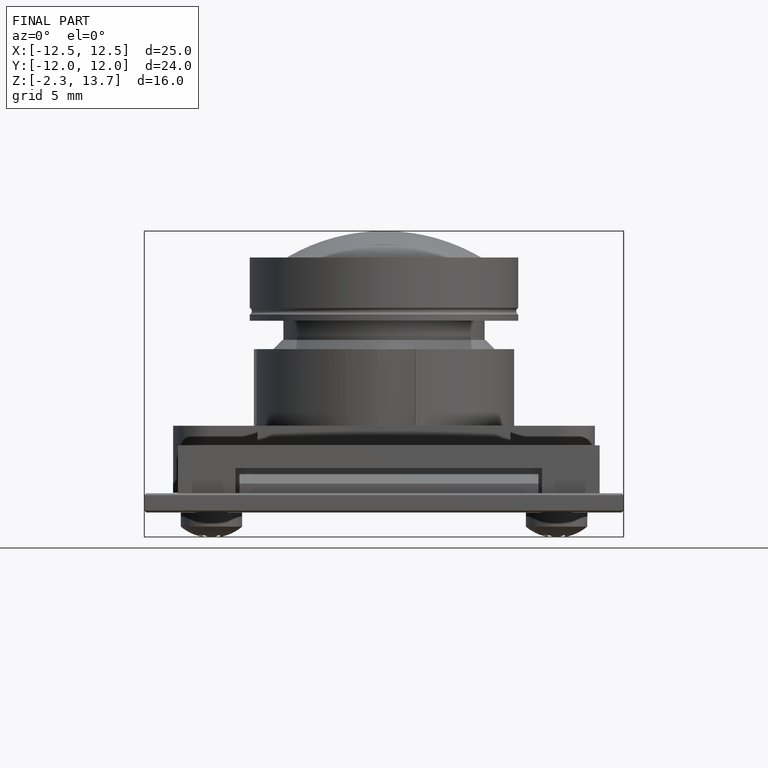
[diagram: finished part — front view with bounding-box wireframe]
